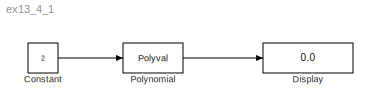
MODEL ex13_4_1
KIND model
BLOCK [Constant] Constant
  SID = 2
  Value = 2
BLOCK [Display] Display
  Decimation = 1
  Lockdown = off
  Ports = [1]
  SID = 3
BLOCK [Polyval] Polynomial
  Coefs = [1 2 3]
  SID = 1
LINE Constant:1 -> Polynomial:1
LINE Polynomial:1 -> Display:1
